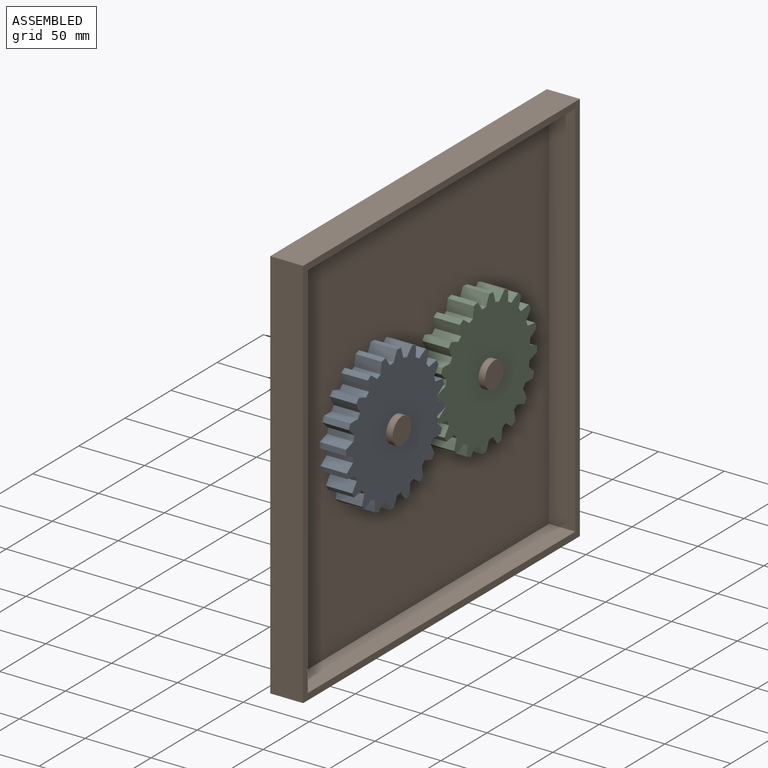
[diagram: assembled view]
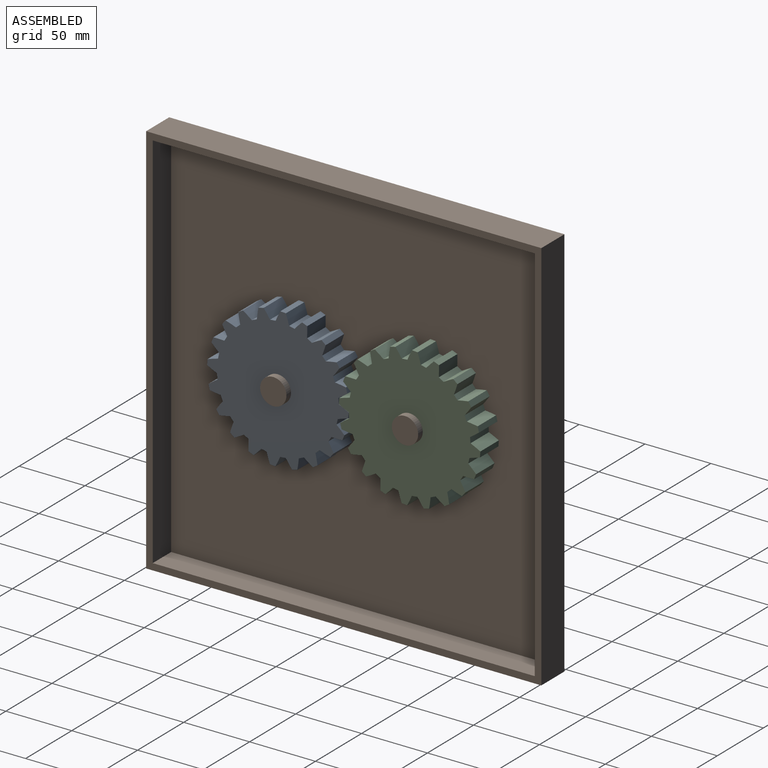
[diagram: assembled view, second angle]
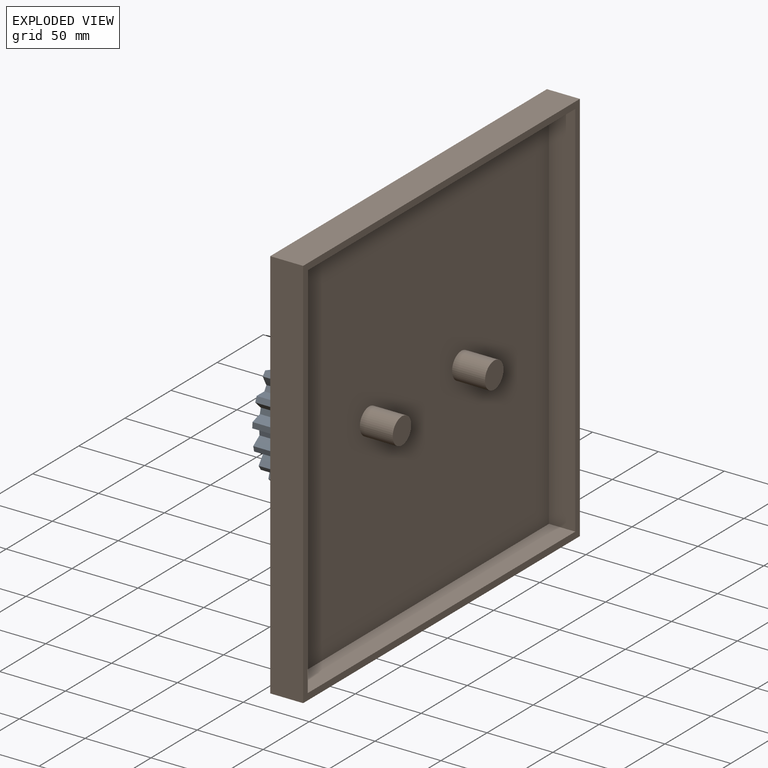
[diagram: exploded view]
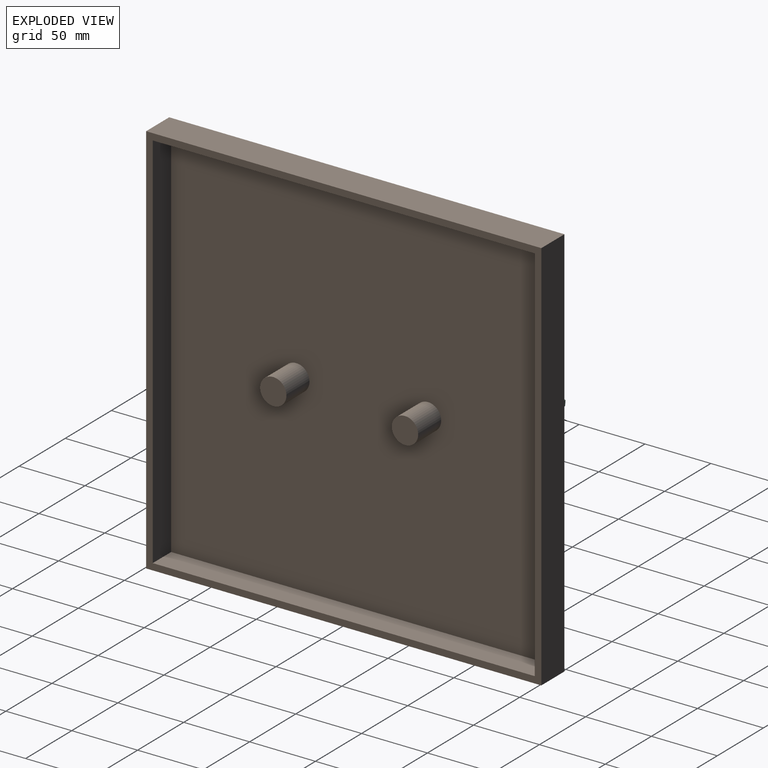
[diagram: exploded view, second angle]
ASSEMBLY  parts=3 mates=2
PART A: 123 faces, bbox 20x107.4x107.4 mm
  f0: plane 20x3.18mm, normal (0,-0.65,-0.76), area 83.9mm2, adj f1,f119,f120,f121
  f1: plane 20x4.09mm, normal (0,-0.98,0.2), area 83.3mm2, adj f0,f2,f120,f121
  f2: plane 20x4.11mm, normal (0,-0.99,0.16), area 83.3mm2, adj f1,f3,f120,f121
  f3: plane 20x3.57mm, normal (0,-0.53,-0.85), area 83.9mm2, adj f2,f4,f120,f121
  f4: plane 20x3.38mm, normal (0,0.58,-0.81), area 83.3mm2, adj f3,f5,f120,f121
  f5: plane 20x3.29mm, normal (0,0.61,-0.79), area 83.3mm2, adj f4,f6,f120,f121
  f6: plane 20x3.87mm, normal (0,-0.39,-0.92), area 83.9mm2, adj f5,f7,f120,f121
  f7: plane 20x4.14mm, normal (0,-0.99,-0.12), area 83.3mm2, adj f6,f8,f120,f121
  f8: plane 20x4.12mm, normal (0,-0.99,-0.15), area 83.3mm2, adj f7,f9,f120,f121
  f9: plane 20x4.08mm, normal (0,-0.24,-0.97), area 83.9mm2, adj f8,f10,f120,f121
  f10: plane 20x3.36mm, normal (0,0.81,-0.59), area 83.3mm2, adj f9,f11,f120,f121
  f11: plane 20x3.44mm, normal (0,0.83,-0.56), area 83.3mm2, adj f10,f12,f120,f121
  f12: plane 20x4.18mm, normal (0,-0.08,-1), area 83.9mm2, adj f11,f13,f120,f121
  f13: plane 20x3.78mm, normal (0,-0.91,-0.42), area 83.3mm2, adj f12,f14,f120,f121
  f14: plane 20x3.72mm, normal (0,-0.89,-0.45), area 83.3mm2, adj f13,f15,f120,f121
  f15: plane 20x4.19mm, normal (0,0.07,-1), area 83.9mm2, adj f14,f16,f120,f121
  f16: plane 20x3.95mm, normal (0,0.95,-0.31), area 83.3mm2, adj f15,f17,f120,f121
  f17: plane 20x4mm, normal (0,0.96,-0.28), area 83.3mm2, adj f16,f18,f120,f121
  f18: plane 20x4.08mm, normal (0,0.23,-0.97), area 83.9mm2, adj f17,f19,f120,f121
  f19: plane 20x3.06mm, normal (0,-0.73,-0.68), area 83.3mm2, adj f18,f20,f120,f121
  f20: plane 20x2.95mm, normal (0,-0.71,-0.7), area 83.3mm2, adj f19,f21,f120,f121
  f21: plane 20x3.88mm, normal (0,0.38,-0.93), area 83.9mm2, adj f20,f22,f120,f121
  f22: plane 20x4.17mm, normal (0,1,-0.01), area 83.3mm2, adj f21,f23,f120,f121
  f23: plane 20x4.16mm, normal (0,1,0.03), area 83.3mm2, adj f22,f24,f120,f121
  f24: plane 20x3.59mm, normal (0,0.52,-0.85), area 83.9mm2, adj f23,f25,f120,f121
  f25: plane 20x3.63mm, normal (0,-0.49,-0.87), area 83.3mm2, adj f24,f26,f120,f121
  f26: plane 20x3.71mm, normal (0,-0.46,-0.89), area 83.3mm2, adj f25,f27,f120,f121
  f27: plane 20x3.2mm, normal (0,0.65,-0.76), area 83.9mm2, adj f26,f28,f120,f121
  f28: plane 20x3.97mm, normal (0,0.95,0.3), area 83.3mm2, adj f27,f29,f120,f121
  f29: plane 20x3.92mm, normal (0,0.94,0.34), area 83.3mm2, adj f28,f30,f120,f121
  f30: plane 20x3.18mm, normal (0,0.76,-0.65), area 83.9mm2, adj f29,f31,f120,f121
  f31: plane 20x4.08mm, normal (0,-0.2,-0.98), area 83.3mm2, adj f30,f32,f120,f121
  f32: plane 20x4.11mm, normal (0,-0.16,-0.99), area 83.3mm2, adj f31,f33,f120,f121
  f33: plane 20x3.57mm, normal (0,0.85,-0.53), area 83.9mm2, adj f32,f34,f120,f121
  f34: plane 20x3.38mm, normal (0,0.81,0.58), area 83.3mm2, adj f33,f35,f120,f121
  f35: plane 20x3.29mm, normal (0,0.79,0.61), area 83.3mm2, adj f34,f36,f120,f121
  f36: plane 20x3.87mm, normal (0,0.92,-0.39), area 83.9mm2, adj f35,f37,f120,f121
  f37: plane 20x4.14mm, normal (0,0.12,-0.99), area 83.3mm2, adj f36,f38,f120,f121
  f38: plane 20x4.12mm, normal (0,0.15,-0.99), area 83.3mm2, adj f37,f39,f120,f121
  f39: plane 20x4.08mm, normal (0,0.97,-0.24), area 83.9mm2, adj f38,f40,f120,f121
  f40: plane 20x3.36mm, normal (0,0.59,0.81), area 83.3mm2, adj f39,f41,f120,f121
  f41: plane 20x3.44mm, normal (0,0.56,0.83), area 83.3mm2, adj f40,f42,f120,f121
  f42: plane 20x4.18mm, normal (0,1,-0.08), area 83.9mm2, adj f41,f43,f120,f121
  f43: plane 20x3.78mm, normal (0,0.42,-0.91), area 83.3mm2, adj f42,f44,f120,f121
  f44: plane 20x3.72mm, normal (0,0.45,-0.89), area 83.3mm2, adj f43,f45,f120,f121
  f45: plane 20x4.19mm, normal (0,1,0.07), area 83.9mm2, adj f44,f46,f120,f121
  f46: plane 20x3.95mm, normal (0,0.31,0.95), area 83.3mm2, adj f45,f47,f120,f121
  f47: plane 20x4mm, normal (0,0.28,0.96), area 83.3mm2, adj f46,f48,f120,f121
  f48: plane 20x4.08mm, normal (0,0.97,0.23), area 83.9mm2, adj f47,f49,f120,f121
  f49: plane 20x3.06mm, normal (0,0.68,-0.73), area 83.3mm2, adj f48,f50,f120,f121
  f50: plane 20x2.95mm, normal (0,0.7,-0.71), area 83.3mm2, adj f49,f51,f120,f121
  f51: plane 20x3.88mm, normal (0,0.93,0.38), area 83.9mm2, adj f50,f52,f120,f121
  f52: plane 20x4.16mm, normal (0,0.01,1), area 83.3mm2, adj f51,f53,f120,f121
  f53: plane 20x4.16mm, normal (0,-0.03,1), area 83.3mm2, adj f52,f54,f120,f121
  f54: plane 20x3.59mm, normal (0,0.85,0.52), area 83.9mm2, adj f53,f55,f120,f121
  f55: plane 20x3.63mm, normal (0,0.87,-0.49), area 83.3mm2, adj f54,f56,f120,f121
  f56: plane 20x3.71mm, normal (0,0.89,-0.46), area 83.3mm2, adj f55,f57,f120,f121
  f57: plane 20x3.2mm, normal (0,0.76,0.65), area 83.9mm2, adj f56,f58,f120,f121
  f58: plane 20x3.97mm, normal (0,-0.3,0.95), area 83.3mm2, adj f57,f59,f120,f121
  f59: plane 20x3.92mm, normal (0,-0.34,0.94), area 83.3mm2, adj f58,f60,f120,f121
  f60: plane 20x3.18mm, normal (0,0.65,0.76), area 83.9mm2, adj f59,f61,f120,f121
  f61: plane 20x4.09mm, normal (0,0.98,-0.2), area 83.3mm2, adj f60,f62,f120,f121
  f62: plane 20x4.11mm, normal (0,0.99,-0.16), area 83.3mm2, adj f61,f63,f120,f121
  f63: plane 20x3.57mm, normal (0,0.53,0.85), area 83.9mm2, adj f62,f64,f120,f121
  f64: plane 20x3.38mm, normal (0,-0.58,0.81), area 83.3mm2, adj f63,f65,f120,f121
  f65: plane 20x3.29mm, normal (0,-0.61,0.79), area 83.3mm2, adj f64,f66,f120,f121
  f66: plane 20x3.87mm, normal (0,0.39,0.92), area 83.9mm2, adj f65,f67,f120,f121
  f67: plane 20x4.14mm, normal (0,0.99,0.12), area 83.3mm2, adj f66,f68,f120,f121
  f68: plane 20x4.12mm, normal (0,0.99,0.15), area 83.3mm2, adj f67,f69,f120,f121
  f69: plane 20x4.08mm, normal (0,0.24,0.97), area 83.9mm2, adj f68,f70,f120,f121
  f70: plane 20x3.36mm, normal (0,-0.81,0.59), area 83.3mm2, adj f69,f71,f120,f121
  f71: plane 20x3.44mm, normal (0,-0.83,0.56), area 83.3mm2, adj f70,f72,f120,f121
  f72: plane 20x4.18mm, normal (0,0.08,1), area 83.9mm2, adj f71,f73,f120,f121
  f73: plane 20x3.78mm, normal (0,0.91,0.42), area 83.3mm2, adj f72,f74,f120,f121
  f74: plane 20x3.72mm, normal (0,0.89,0.45), area 83.3mm2, adj f73,f75,f120,f121
  f75: plane 20x4.19mm, normal (0,-0.07,1), area 83.9mm2, adj f74,f76,f120,f121
  f76: plane 20x3.95mm, normal (0,-0.95,0.31), area 83.3mm2, adj f75,f77,f120,f121
  f77: plane 20x4mm, normal (0,-0.96,0.28), area 83.3mm2, adj f76,f78,f120,f121
  f78: plane 20x4.08mm, normal (0,-0.23,0.97), area 83.9mm2, adj f77,f79,f120,f121
  f79: plane 20x3.06mm, normal (0,0.73,0.68), area 83.3mm2, adj f78,f80,f120,f121
  f80: plane 20x2.95mm, normal (0,0.71,0.7), area 83.3mm2, adj f79,f81,f120,f121
  f81: plane 20x3.88mm, normal (0,-0.38,0.93), area 83.9mm2, adj f80,f82,f120,f121
  f82: plane 20x4.17mm, normal (0,-1,0.01), area 83.3mm2, adj f81,f83,f120,f121
  f83: plane 20x4.16mm, normal (0,-1,-0.03), area 83.3mm2, adj f82,f84,f120,f121
  f84: plane 20x3.59mm, normal (0,-0.52,0.85), area 83.9mm2, adj f83,f85,f120,f121
  f85: plane 20x3.63mm, normal (0,0.49,0.87), area 83.3mm2, adj f84,f86,f120,f121
  f86: plane 20x3.71mm, normal (0,0.46,0.89), area 83.3mm2, adj f85,f87,f120,f121
  f87: plane 20x3.2mm, normal (0,-0.65,0.76), area 83.9mm2, adj f86,f88,f120,f121
  f88: plane 20x3.97mm, normal (0,-0.95,-0.3), area 83.3mm2, adj f87,f89,f120,f121
  f89: plane 20x3.92mm, normal (0,-0.94,-0.34), area 83.3mm2, adj f88,f90,f120,f121
  f90: plane 20x3.18mm, normal (0,-0.76,0.65), area 83.9mm2, adj f89,f91,f120,f121
  f91: plane 20x4.08mm, normal (0,0.2,0.98), area 83.3mm2, adj f90,f92,f120,f121
  f92: plane 20x4.11mm, normal (0,0.16,0.99), area 83.3mm2, adj f91,f93,f120,f121
  f93: plane 20x3.57mm, normal (0,-0.85,0.53), area 83.9mm2, adj f92,f94,f120,f121
  f94: plane 20x3.38mm, normal (0,-0.81,-0.58), area 83.3mm2, adj f93,f95,f120,f121
  f95: plane 20x3.29mm, normal (0,-0.79,-0.61), area 83.3mm2, adj f94,f96,f120,f121
  f96: plane 20x3.87mm, normal (0,-0.92,0.39), area 83.9mm2, adj f95,f97,f120,f121
  f97: plane 20x4.14mm, normal (0,-0.12,0.99), area 83.3mm2, adj f96,f98,f120,f121
  f98: plane 20x4.12mm, normal (0,-0.15,0.99), area 83.3mm2, adj f97,f99,f120,f121
  f99: plane 20x4.08mm, normal (0,-0.97,0.24), area 83.9mm2, adj f98,f100,f120,f121
  f100: plane 20x3.36mm, normal (0,-0.59,-0.81), area 83.3mm2, adj f99,f101,f120,f121
  f101: plane 20x3.44mm, normal (0,-0.56,-0.83), area 83.3mm2, adj f100,f102,f120,f121
  f102: plane 20x4.18mm, normal (0,-1,0.08), area 83.9mm2, adj f101,f103,f120,f121
  f103: plane 20x3.78mm, normal (0,-0.42,0.91), area 83.3mm2, adj f102,f104,f120,f121
  f104: plane 20x3.72mm, normal (0,-0.45,0.89), area 83.3mm2, adj f103,f105,f120,f121
  f105: plane 20x4.19mm, normal (0,-1,-0.07), area 83.9mm2, adj f104,f106,f120,f121
  f106: plane 20x3.95mm, normal (0,-0.31,-0.95), area 83.3mm2, adj f105,f107,f120,f121
  f107: plane 20x4mm, normal (0,-0.28,-0.96), area 83.3mm2, adj f106,f108,f120,f121
  f108: plane 20x4.08mm, normal (0,-0.97,-0.23), area 83.9mm2, adj f107,f109,f120,f121
  f109: plane 20x3.06mm, normal (0,-0.68,0.73), area 83.3mm2, adj f108,f110,f120,f121
  f110: plane 20x2.95mm, normal (0,-0.7,0.71), area 83.3mm2, adj f109,f111,f120,f121
  f111: plane 20x3.88mm, normal (0,-0.93,-0.38), area 83.9mm2, adj f110,f112,f120,f121
  f112: plane 20x4.16mm, normal (0,-0.01,-1), area 83.3mm2, adj f111,f113,f120,f121
  f113: plane 20x4.16mm, normal (0,0.03,-1), area 83.3mm2, adj f112,f114,f120,f121
  f114: plane 20x3.59mm, normal (0,-0.85,-0.52), area 83.9mm2, adj f113,f115,f120,f121
  f115: plane 20x3.63mm, normal (0,-0.87,0.49), area 83.3mm2, adj f114,f116,f120,f121
  f116: plane 20x3.71mm, normal (0,-0.89,0.46), area 83.3mm2, adj f115,f117,f120,f121
  f117: plane 20x3.2mm, normal (0,-0.76,-0.65), area 83.9mm2, adj f116,f118,f120,f121
  f118: plane 20x3.97mm, normal (0,0.3,-0.95), area 83.3mm2, adj f117,f119,f120,f121
  f119: plane 20x3.92mm, normal (0,0.34,-0.94), area 83.3mm2, adj f0,f118,f120,f121
  f120: plane 107.43x107.43mm, normal (1,0,0), area 7500.1mm2, adj f0,f1,f2,f3,f4,f5,f6,f7
  f121: plane 107.43x107.43mm, normal (-1,0,0), area 7500.1mm2, adj f0,f1,f2,f3,f4,f5,f6,f7
  f122: cylinder r=10mm len=20mm, axis (1,0,0), area 1256.6mm2, adj f120,f121
PART B: 15 faces, bbox 30x300x300 mm
  f0: plane 300x300mm, normal (1,0,0), area 5900mm2, adj f1,f2,f3,f4,f6,f7,f8,f9
  f1: plane 300x25mm, normal (0,0,1), area 7500mm2, adj f0,f2,f4,f5
  f2: plane 300x25mm, normal (0,-1,0), area 7500mm2, adj f0,f1,f3,f5
  f3: plane 300x25mm, normal (0,0,-1), area 7500mm2, adj f0,f2,f4,f5
  f4: plane 300x25mm, normal (0,1,0), area 7500mm2, adj f0,f1,f3,f5
  f5: plane 300x300mm, normal (-1,0,0), area 90000mm2, adj f1,f2,f3,f4
  f6: plane 290x20mm, normal (0,0,-1), area 5800mm2, adj f0,f7,f9,f10
  f7: plane 290x20mm, normal (0,1,0), area 5800mm2, adj f0,f6,f8,f10
  f8: plane 290x20mm, normal (0,0,1), area 5800mm2, adj f0,f7,f9,f10
  f9: plane 290x20mm, normal (0,-1,0), area 5800mm2, adj f0,f6,f8,f10
  f10: plane 290x290mm, normal (1,0,0), area 83471.7mm2, adj f6,f7,f8,f9,f11,f13
  f11: cylinder r=10mm len=25mm, axis (-1,0,0), area 1570.8mm2, adj f10,f12
  f12: plane 20x20mm, normal (1,0,0), area 314.2mm2, adj f11
  f13: cylinder r=10mm len=25mm, axis (-1,0,0), area 1570.8mm2, adj f10,f14
  f14: plane 20x20mm, normal (1,0,0), area 314.2mm2, adj f13
PART C: same geometry as A
PLACE A rot(axis=(0,1,0),180deg) t=(89.2,108.9,-118.39)mm
PLACE B t=(64.2,158.9,-118.39)mm
PLACE C rot(axis=(0,1,0),180deg) t=(89.2,208.9,-118.39)mm
MATE revolute C.f122 <-> B.f13  axis (-1,0,0) through (69.2,208.9,-118.39)mm
MATE revolute A.f122 <-> B.f11  axis (-1,0,0) through (69.2,108.9,-118.39)mm
